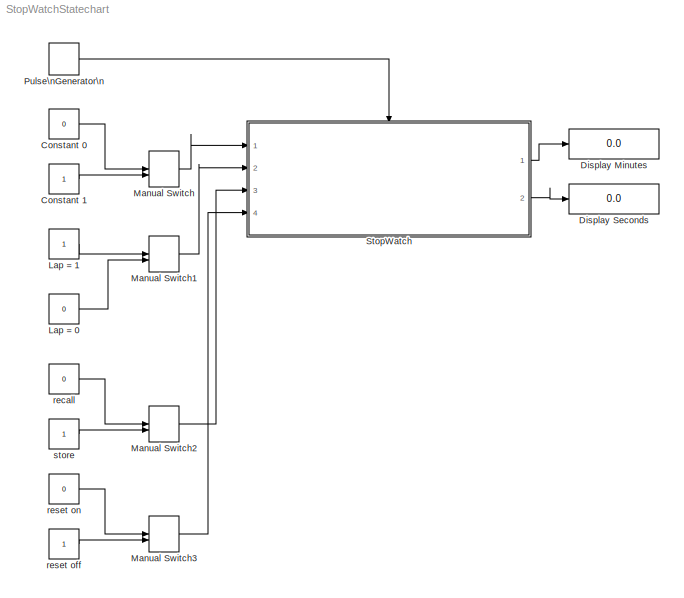
MODEL StopWatchStatechart
KIND model
BLOCK [Constant] Constant 0
  OutDataTypeStr = boolean
  SID = 3
  Value = 0
BLOCK [Constant] Constant 1
  OutDataTypeStr = boolean
  SID = 4
BLOCK [Display] Display Minutes
  Decimation = 1
  Ports = [1]
  SID = 6
BLOCK [Display] Display Seconds
  Decimation = 1
  Ports = [1]
  SID = 7
BLOCK [Constant] Lap = 0
  OutDataTypeStr = boolean
  SID = 15
  Value = 0
BLOCK [Constant] Lap = 1
  OutDataTypeStr = boolean
  SID = 13
BLOCK [ManualSwitch] Manual Switch
  CurrentSetting = 0
  SID = 5
BLOCK [ManualSwitch] Manual Switch1
  SID = 9
BLOCK [ManualSwitch] Manual Switch2
  SID = 31
BLOCK [ManualSwitch] Manual Switch3
  CurrentSetting = 0
  SID = 35
BLOCK [DiscretePulseGenerator] Pulse\nGenerator\n
  Period = 1
  Ports = [0, 1]
  PulseType = Time based
  PulseWidth = 5
  SID = 2
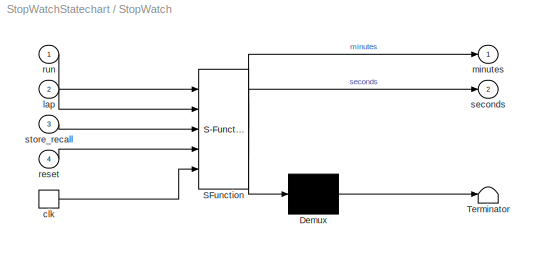
BLOCK [SubSystem] StopWatch
  ErrorFcn = Stateflow.Translate.translate
  PermitHierarchicalResolution = ExplicitOnly
  Ports = [4, 2, 0, 1]
  RequestExecContextInheritance = off
  SFBlockType = Chart
  SID = 1
  TreatAsAtomicUnit = on
BLOCK [Demux] StopWatch/ Demux 
  Outputs = 1
  Ports = [1, 1]
  SID = 1::94
BLOCK [S-Function] StopWatch/ SFunction 
  EnableBusSupport = on
  FunctionName = sf_sfun
  PortCounts = [5 3]
  Ports = [5, 3]
  SFcnIsStateOwnerBlock = off
  SFunctionDeploymentMode = off
  SID = 1::93
  Tag = Stateflow S-Function 3
BLOCK [Terminator] StopWatch/ Terminator 
  SID = 1::111
BLOCK [TriggerPort] StopWatch/clk
  Ports = [0, 1]
  SID = 1::97
  ShowOutputPort = on
  StatesWhenEnabling = held
  VariantControl = (inherit)
BLOCK [Inport] StopWatch/lap
  Port = 2
  SID = 1::106
BLOCK [Outport] StopWatch/minutes
  SID = 1::98
BLOCK [Inport] StopWatch/reset
  Port = 4
  SID = 1::113
BLOCK [Inport] StopWatch/run
  SID = 1::101
BLOCK [Outport] StopWatch/seconds
  Port = 2
  SID = 1::99
BLOCK [Inport] StopWatch/store_recall
  Port = 3
  SID = 1::112
BLOCK [Constant] recall
  OutDataTypeStr = boolean
  SID = 29
  Value = 0
BLOCK [Constant] reset off
  OutDataTypeStr = boolean
  SID = 36
BLOCK [Constant] reset on
  OutDataTypeStr = boolean
  SID = 37
  Value = 0
BLOCK [Constant] store
  OutDataTypeStr = boolean
  SID = 30
LINE Constant 0:1 -> Manual Switch:1
LINE Constant 1:1 -> Manual Switch:2
LINE Lap = 0:1 -> Manual Switch1:2
LINE Lap = 1:1 -> Manual Switch1:1
LINE Manual Switch1:1 -> StopWatch:2
LINE Manual Switch2:1 -> StopWatch:3
LINE Manual Switch3:1 -> StopWatch:4
LINE Manual Switch:1 -> StopWatch:1
LINE Pulse\nGenerator\n:1 -> StopWatch:trigger
LINE StopWatch/ Demux :1 -> StopWatch/ Terminator :1
LINE StopWatch/ SFunction :1 -> StopWatch/ Demux :1
LINE StopWatch/ SFunction :2 -> StopWatch/minutes:1
LINE StopWatch/ SFunction :3 -> StopWatch/seconds:1
LINE StopWatch/clk:1 -> StopWatch/ SFunction :5
LINE StopWatch/lap:1 -> StopWatch/ SFunction :2
LINE StopWatch/reset:1 -> StopWatch/ SFunction :4
LINE StopWatch/run:1 -> StopWatch/ SFunction :1
LINE StopWatch/store_recall:1 -> StopWatch/ SFunction :3
LINE StopWatch:1 -> Display Minutes:1
LINE StopWatch:2 -> Display Seconds:1
LINE recall:1 -> Manual Switch2:1
LINE reset off:1 -> Manual Switch3:2
LINE reset on:1 -> Manual Switch3:1
LINE store:1 -> Manual Switch2:2
CHART StopWatch states=11 transitions=17
  STATE_LABEL 'Stopped'
  STATE_LABEL 'Counter'
  STATE_LABEL 'Started'
  STATE_LABEL 'lap'
  STATE_LABEL 'Lap'
  STATE_LABEL 'Clock'
  STATE_LABEL 'store_recall'
  STATE_LABEL 'store_recall'
  STATE_LABEL 'Reset'
  STATE_LABEL 'Store'
  STATE_LABEL 'Recall'
